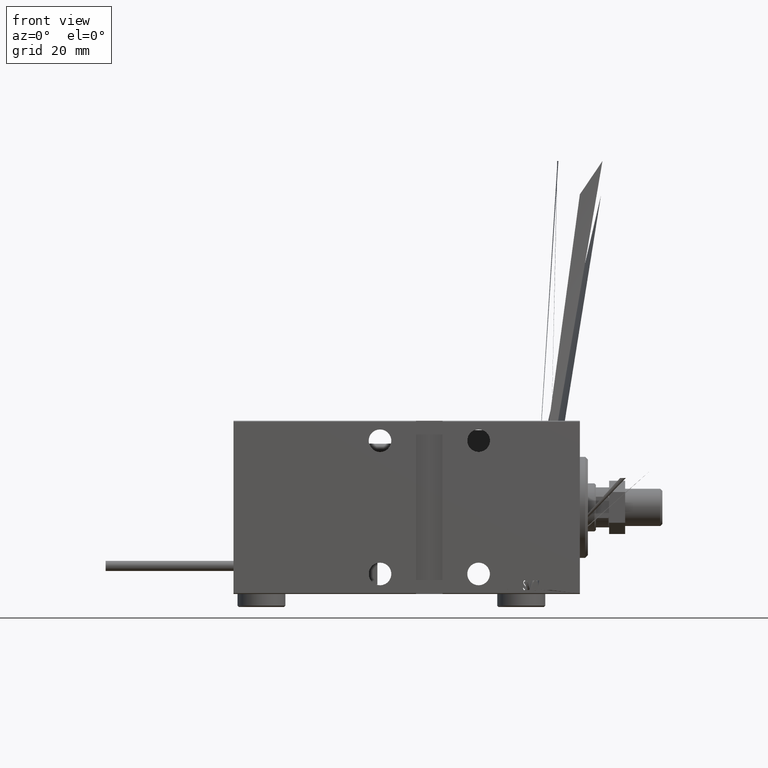
[diagram: clean part render]
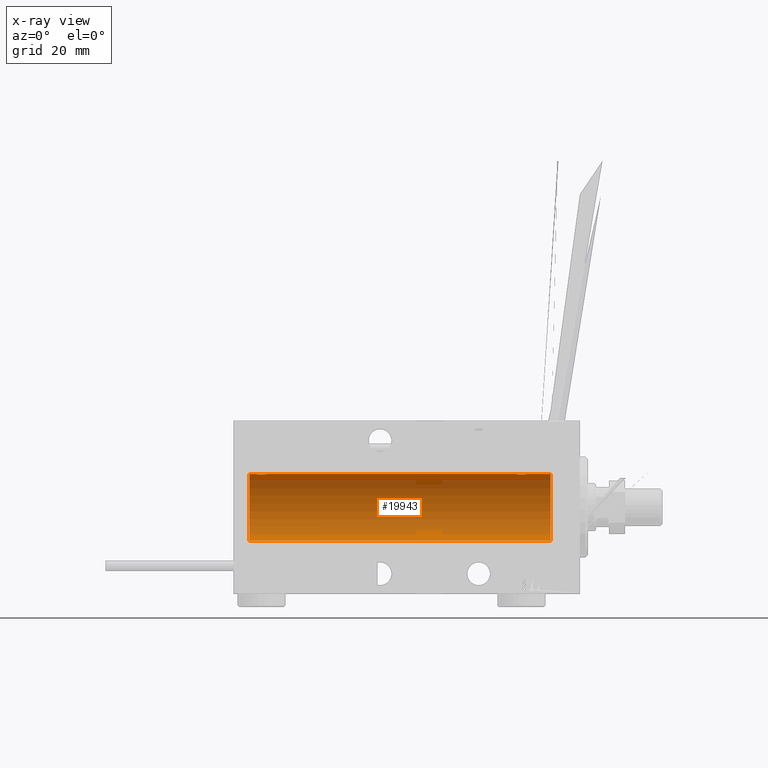
[diagram: x-ray — body ghosted, one internal face saturated and labeled with its STEP entity id]
A machine part, front view, then the same camera in x-ray: the body is ghosted and one INTERNAL B-rep face — a face not visible from any outside direction — is saturated and labeled: STEP entity #19943.
In plain terms, the highlighted cylindrical surface (edge-blend (fillet) strip) has radius 12.5 mm, axis along (1, 0, -0).
Its self-contained STEP definition (entity closure, byte-faithful):
#129 = CARTESIAN_POINT ( 'NONE',  ( 119.6308996732342393, -2.000082296475562682, 12.33894933996983490 ) ) ;
#207 = DIRECTION ( 'NONE',  ( -1.000000000000000000, -0.000000000000000000, -0.000000000000000000 ) ) ;
#1146 = CARTESIAN_POINT ( 'NONE',  ( 119.7609349728560915, -1.987194304939074785, 12.34105826212746138 ) ) ;
#1403 = CARTESIAN_POINT ( 'NONE',  ( 20.05255659427669812, -0.5247436444070349149, 12.49130933415156974 ) ) ;
#1498 = CARTESIAN_POINT ( 'NONE',  ( 10.99999999999999645, 1.530808498934191521E-15, -12.50000000000000000 ) ) ;
#2249 = DIRECTION ( 'NONE',  ( -1.000000000000000000, -0.000000000000000000, -0.000000000000000000 ) ) ;
#2604 = ORIENTED_EDGE ( 'NONE', *, *, #22891, .T. ) ;
#2842 = EDGE_CURVE ( 'NONE', #19335, #3336, #16091, .T. ) ;
#3007 = CARTESIAN_POINT ( 'NONE',  ( 118.8535610303641050, -1.897190184049181383, 12.35529285772521746 ) ) ;
#3336 = VERTEX_POINT ( 'NONE', #22499 ) ;
#3649 = CARTESIAN_POINT ( 'NONE',  ( 23.00099792098507834, -1.736403706023272875, 12.37902502246767789 ) ) ;
#3893 = CARTESIAN_POINT ( 'NONE',  ( 19.99999999999999645, -7.265724481447607133E-23, 12.50000000000000000 ) ) ;
#4008 = CARTESIAN_POINT ( 'NONE',  ( 124.0000000000000000, 1.530808498934191521E-15, -12.50000000000000000 ) ) ;
#4165 = ORIENTED_EDGE ( 'NONE', *, *, #7834, .F. ) ;
#4790 = CARTESIAN_POINT ( 'NONE',  ( 120.7185411954193768, -1.591305132013874246, 12.39851226212236313 ) ) ;
#4796 = CARTESIAN_POINT ( 'NONE',  ( 20.49277848532006274, -1.321088093821079168, 12.43033959299025071 ) ) ;
#7035 = CARTESIAN_POINT ( 'NONE',  ( 24.00000000000000000, -2.019790789754703983E-15, 12.50000000000000000 ) ) ;
#7660 = CARTESIAN_POINT ( 'NONE',  ( 117.7021439353174372, -0.8858253204748011145, 12.46915613403961309 ) ) ;
#7711 = VECTOR ( 'NONE', #207, 1000.000000000000000 ) ;
#7834 = EDGE_CURVE ( 'NONE', #19307, #28510, #48658, .T. ) ;
#7919 = CARTESIAN_POINT ( 'NONE',  ( 121.2466213662089416, -1.008535157355832990, 12.46157701909767823 ) ) ;
#8427 = CARTESIAN_POINT ( 'NONE',  ( 121.5000000000000142, 3.243081337463046590E-15, 12.50000000000000000 ) ) ;
#8687 = CARTESIAN_POINT ( 'NONE',  ( 20.20214393531741237, -0.8858253204748030019, 12.46915613403961132 ) ) ;
#9361 = CARTESIAN_POINT ( 'NONE',  ( 10.99999999999999645, 0.000000000000000000, 12.50000000000000000 ) ) ;
#9994 = B_SPLINE_CURVE_WITH_KNOTS ( 'NONE', 3,
 ( #36502, #45312, #1403, #8687, #36757, #24574, #4796, #12849, #49202, #13617, #28714, #44553, #44805, #25082, #46534, #39515, #31207, #39262, #10927, #27322, #3649, #34838, #26813, #15617, #42641, #31460, #19528, #7035 ),
 .UNSPECIFIED., .F., .F.,
 ( 4, 2, 2, 2, 2, 2, 2, 2, 2, 2, 2, 2, 2, 4 ),
 ( 0.006262980370572162822, 0.007045658964677358610, 0.007436998261729958239, 0.007828337558782557867, 0.008219676855835158363, 0.008611016152887758859, 0.009002355449940359355, 0.009393694746992958117, 0.009785034044045558613, 0.01017637334109815911, 0.01056771263815075960, 0.01095905193520336010, 0.01174173052930856803, 0.01252440912341377596 ),
 .UNSPECIFIED. ) ;
#10046 = CARTESIAN_POINT ( 'NONE',  ( 124.0000000000000000, 0.000000000000000000, 12.50000000000000000 ) ) ;
#10155 = ORIENTED_EDGE ( 'NONE', *, *, #34935, .T. ) ;
#10422 = DIRECTION ( 'NONE',  ( 0.000000000000000000, 0.000000000000000000, 1.000000000000000000 ) ) ;
#10794 = CARTESIAN_POINT ( 'NONE',  ( 118.2797285010258008, -1.589951752150278619, 12.39868561261688917 ) ) ;
#10927 = CARTESIAN_POINT ( 'NONE',  ( 22.64425278797729746, -1.897913903092049104, 12.35518060345724933 ) ) ;
#11052 = CARTESIAN_POINT ( 'NONE',  ( 119.2360862689756686, -1.986793270638193887, 12.34112317291865146 ) ) ;
#11765 = VERTEX_POINT ( 'NONE', #3893 ) ;
#12843 = CARTESIAN_POINT ( 'NONE',  ( 119.3665974954870705, -1.999916920503812978, 12.33897614545467469 ) ) ;
#12849 = CARTESIAN_POINT ( 'NONE',  ( 20.67700056892266502, -1.505544071529936634, 12.40934942683854025 ) ) ;
#13617 = CARTESIAN_POINT ( 'NONE',  ( 20.99654425923307599, -1.734959850168413142, 12.37922718965050528 ) ) ;
#13819 = DIRECTION ( 'NONE',  ( -1.000000000000000000, 0.000000000000000000, 0.000000000000000000 ) ) ;
#14208 = ORIENTED_EDGE ( 'NONE', *, *, #32484, .T. ) ;
#14994 = DIRECTION ( 'NONE',  ( -1.000000000000000000, -0.000000000000000000, -0.000000000000000000 ) ) ;
#15617 = CARTESIAN_POINT ( 'NONE',  ( 23.59744774691022684, -1.231226695485370337, 12.44059298055987917 ) ) ;
#16091 = LINE ( 'NONE', #16351, #37735 ) ;
#16351 = CARTESIAN_POINT ( 'NONE',  ( 124.0000000000000000, 0.000000000000000000, 12.50000000000000000 ) ) ;
#16506 = CARTESIAN_POINT ( 'NONE',  ( 121.0974477469102339, -1.231226695485357236, 12.44059298055988450 ) ) ;
#17018 = CARTESIAN_POINT ( 'NONE',  ( 120.8211671285144604, -1.507135374967688790, 12.40915432986586708 ) ) ;
#18044 = ORIENTED_EDGE ( 'NONE', *, *, #29255, .F. ) ;
#18126 = LINE ( 'NONE', #10046, #33851 ) ;
#18878 = CARTESIAN_POINT ( 'NONE',  ( 118.9803852764213161, -1.935716533151640828, 12.34923763528284901 ) ) ;
#19307 = VERTEX_POINT ( 'NONE', #4008 ) ;
#19335 = VERTEX_POINT ( 'NONE', #44278 ) ;
#19528 = CARTESIAN_POINT ( 'NONE',  ( 23.99999999999998934, -0.2646816682749779659, 12.49999999999999822 ) ) ;
#19901 = CARTESIAN_POINT ( 'NONE',  ( 120.0169372669762851, -1.936441098420705664, 12.34912369794528608 ) ) ;
#19943 = ADVANCED_FACE ( 'NONE', ( #45359 ), #21227, .F. ) ;
#21227 = CYLINDRICAL_SURFACE ( 'NONE', #26414, 12.50000000000000000 ) ;
#22499 = CARTESIAN_POINT ( 'NONE',  ( 24.00000000000000000, -2.019790789754703983E-15, 12.50000000000000000 ) ) ;
#22891 = EDGE_CURVE ( 'NONE', #43413, #48063, #41440, .T. ) ;
#23548 = CARTESIAN_POINT ( 'NONE',  ( 117.7643692198042658, -1.002396200863564735, 12.46022444231051018 ) ) ;
#24567 = CARTESIAN_POINT ( 'NONE',  ( 120.1442527879772939, -1.897913903092039556, 12.35518060345725111 ) ) ;
#24574 = CARTESIAN_POINT ( 'NONE',  ( 20.41018909771709744, -1.220538259806348114, 12.44075068685996754 ) ) ;
#25082 = CARTESIAN_POINT ( 'NONE',  ( 21.73608626897564733, -1.986793270638199882, 12.34112317291865146 ) ) ;
#26169 = VERTEX_POINT ( 'NONE', #36977 ) ;
#26414 = AXIS2_PLACEMENT_3D ( 'NONE', #29268, #44850, #45104 ) ;
#26680 = CARTESIAN_POINT ( 'NONE',  ( 118.4965442592331328, -1.734959850168412476, 12.37922718965050883 ) ) ;
#26813 = CARTESIAN_POINT ( 'NONE',  ( 23.32116712851443552, -1.507135374967700114, 12.40915432986586708 ) ) ;
#27322 = CARTESIAN_POINT ( 'NONE',  ( 22.88616153879432957, -1.797736511708064366, 12.37015393445321010 ) ) ;
#27447 = CARTESIAN_POINT ( 'NONE',  ( 117.5000000000000142, -7.266355570171783942E-23, 12.50000000000000000 ) ) ;
#28080 = ORIENTED_EDGE ( 'NONE', *, *, #2842, .F. ) ;
#28510 = VERTEX_POINT ( 'NONE', #31349 ) ;
#28714 = CARTESIAN_POINT ( 'NONE',  ( 21.11125274202960256, -1.796480516834689567, 12.37033750336835602 ) ) ;
#29255 = EDGE_CURVE ( 'NONE', #28510, #26169, #30588, .T. ) ;
#29268 = CARTESIAN_POINT ( 'NONE',  ( 124.0000000000000000, 0.000000000000000000, 0.000000000000000000 ) ) ;
#29275 = DIRECTION ( 'NONE',  ( -1.000000000000000000, 0.000000000000000000, 0.000000000000000000 ) ) ;
#29637 = ORIENTED_EDGE ( 'NONE', *, *, #41860, .F. ) ;
#30426 = AXIS2_PLACEMENT_3D ( 'NONE', #41867, #13819, #10422 ) ;
#30588 = LINE ( 'NONE', #46686, #36551 ) ;
#30818 = CARTESIAN_POINT ( 'NONE',  ( 117.9927784853201160, -1.321088093821075837, 12.43033959299025248 ) ) ;
#31207 = CARTESIAN_POINT ( 'NONE',  ( 22.26093497285606304, -1.987194304939079004, 12.34105826212746138 ) ) ;
#31349 = CARTESIAN_POINT ( 'NONE',  ( 124.0000000000000000, 0.000000000000000000, 12.50000000000000000 ) ) ;
#31460 = CARTESIAN_POINT ( 'NONE',  ( 23.94665679898379906, -0.5275951738695691118, 12.49118442338578561 ) ) ;
#31919 = CARTESIAN_POINT ( 'NONE',  ( 124.0000000000000000, 1.530808498934191521E-15, -12.50000000000000000 ) ) ;
#32484 = EDGE_CURVE ( 'NONE', #19335, #26169, #37388, .T. ) ;
#33158 = CARTESIAN_POINT ( 'NONE',  ( 10.99999999999999645, 0.000000000000000000, 0.000000000000000000 ) ) ;
#33851 = VECTOR ( 'NONE', #2249, 1000.000000000000000 ) ;
#34047 = EDGE_LOOP ( 'NONE', ( #4165, #39057, #2604, #29637, #10155, #28080, #14208, #18044 ) ) ;
#34838 = CARTESIAN_POINT ( 'NONE',  ( 23.21854119541937678, -1.591305132013879131, 12.39851226212236135 ) ) ;
#34935 = EDGE_CURVE ( 'NONE', #11765, #3336, #9994, .T. ) ;
#35333 = EDGE_CURVE ( 'NONE', #19307, #43413, #48265, .T. ) ;
#35478 = CARTESIAN_POINT ( 'NONE',  ( 118.1770005689226792, -1.505544071529932193, 12.40934942683854203 ) ) ;
#36502 = CARTESIAN_POINT ( 'NONE',  ( 19.99999999999999645, -7.265724481447607133E-23, 12.50000000000000000 ) ) ;
#36551 = VECTOR ( 'NONE', #14994, 1000.000000000000000 ) ;
#36757 = CARTESIAN_POINT ( 'NONE',  ( 20.26436921980423378, -1.002396200863559850, 12.46022444231050841 ) ) ;
#36977 = CARTESIAN_POINT ( 'NONE',  ( 121.5000000000000142, 3.243081337463046590E-15, 12.50000000000000000 ) ) ;
#37319 = DIRECTION ( 'NONE',  ( 0.000000000000000000, 0.000000000000000000, 1.000000000000000000 ) ) ;
#37388 = B_SPLINE_CURVE_WITH_KNOTS ( 'NONE', 3,
 ( #27447, #43272, #46395, #7660, #23548, #39386, #30818, #35478, #10794, #26680, #38623, #3007, #18878, #11052, #12843, #129, #1146, #19901, #24567, #39639, #43535, #4790, #17018, #16506, #7919, #44547, #40400, #8427 ),
 .UNSPECIFIED., .F., .F.,
 ( 4, 2, 2, 2, 2, 2, 2, 2, 2, 2, 2, 2, 2, 4 ),
 ( 0.006262980370572149812, 0.007045658964677364682, 0.007436998261729964310, 0.007828337558782563071, 0.008219676855835163568, 0.008611016152887762329, 0.009002355449940362825, 0.009393694746992961586, 0.009785034044045560347, 0.01017637334109816084, 0.01056771263815076134, 0.01095905193520336010, 0.01174173052930855936, 0.01252440912341375862 ),
 .UNSPECIFIED. ) ;
#37735 = VECTOR ( 'NONE', #43884, 1000.000000000000000 ) ;
#38623 = CARTESIAN_POINT ( 'NONE',  ( 118.6112527420296203, -1.796480516834681573, 12.37033750336835780 ) ) ;
#39057 = ORIENTED_EDGE ( 'NONE', *, *, #35333, .T. ) ;
#39262 = CARTESIAN_POINT ( 'NONE',  ( 22.51693726697628506, -1.936441098420709439, 12.34912369794528786 ) ) ;
#39386 = CARTESIAN_POINT ( 'NONE',  ( 117.9101890977171223, -1.220538259806352110, 12.44075068685997110 ) ) ;
#39515 = CARTESIAN_POINT ( 'NONE',  ( 22.13089967323422158, -2.000082296475567567, 12.33894933996983134 ) ) ;
#39639 = CARTESIAN_POINT ( 'NONE',  ( 120.3861615387943544, -1.797736511708053264, 12.37015393445321010 ) ) ;
#40400 = CARTESIAN_POINT ( 'NONE',  ( 121.5000000000000142, -0.2646816682749792982, 12.50000000000000000 ) ) ;
#41440 = CIRCLE ( 'NONE', #51383, 12.50000000000000000 ) ;
#41860 = EDGE_CURVE ( 'NONE', #11765, #48063, #18126, .T. ) ;
#41867 = CARTESIAN_POINT ( 'NONE',  ( 124.0000000000000000, 0.000000000000000000, 0.000000000000000000 ) ) ;
#42641 = CARTESIAN_POINT ( 'NONE',  ( 23.74662136620892383, -1.008535157355843648, 12.46157701909767823 ) ) ;
#43272 = CARTESIAN_POINT ( 'NONE',  ( 117.5000000000000284, -0.2612140938986750593, 12.50000000000000178 ) ) ;
#43413 = VERTEX_POINT ( 'NONE', #1498 ) ;
#43535 = CARTESIAN_POINT ( 'NONE',  ( 120.5009979209850854, -1.736403706023266658, 12.37902502246767611 ) ) ;
#43884 = DIRECTION ( 'NONE',  ( -1.000000000000000000, -0.000000000000000000, -0.000000000000000000 ) ) ;
#44278 = CARTESIAN_POINT ( 'NONE',  ( 117.5000000000000142, -7.266355570171783942E-23, 12.50000000000000000 ) ) ;
#44547 = CARTESIAN_POINT ( 'NONE',  ( 121.4466567989837671, -0.5275951738695600080, 12.49118442338578561 ) ) ;
#44553 = CARTESIAN_POINT ( 'NONE',  ( 21.35356103036408371, -1.897190184049190043, 12.35529285772521391 ) ) ;
#44805 = CARTESIAN_POINT ( 'NONE',  ( 21.48038527642126283, -1.935716533151644381, 12.34923763528284901 ) ) ;
#44850 = DIRECTION ( 'NONE',  ( -1.000000000000000000, -0.000000000000000000, -0.000000000000000000 ) ) ;
#45104 = DIRECTION ( 'NONE',  ( 0.000000000000000000, 0.000000000000000000, 1.000000000000000000 ) ) ;
#45312 = CARTESIAN_POINT ( 'NONE',  ( 20.00000000000000000, -0.2612140938986765581, 12.50000000000000000 ) ) ;
#45359 = FACE_OUTER_BOUND ( 'NONE', #34047, .T. ) ;
#46395 = CARTESIAN_POINT ( 'NONE',  ( 117.5525565942767088, -0.5247436444070336936, 12.49130933415156619 ) ) ;
#46534 = CARTESIAN_POINT ( 'NONE',  ( 21.86659749548704212, -1.999916920503819862, 12.33897614545467469 ) ) ;
#46686 = CARTESIAN_POINT ( 'NONE',  ( 124.0000000000000000, 0.000000000000000000, 12.50000000000000000 ) ) ;
#48063 = VERTEX_POINT ( 'NONE', #9361 ) ;
#48265 = LINE ( 'NONE', #31919, #7711 ) ;
#48658 = CIRCLE ( 'NONE', #30426, 12.50000000000000000 ) ;
#49202 = CARTESIAN_POINT ( 'NONE',  ( 20.77972850102579372, -1.589951752150277953, 12.39868561261689095 ) ) ;
#51383 = AXIS2_PLACEMENT_3D ( 'NONE', #33158, #29275, #37319 ) ;